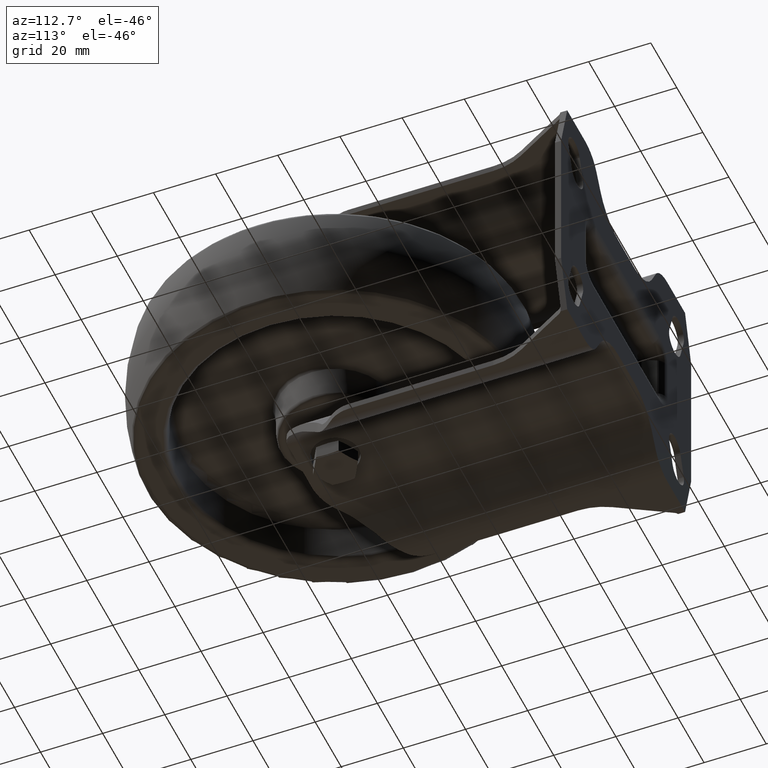
[diagram: clean part render]
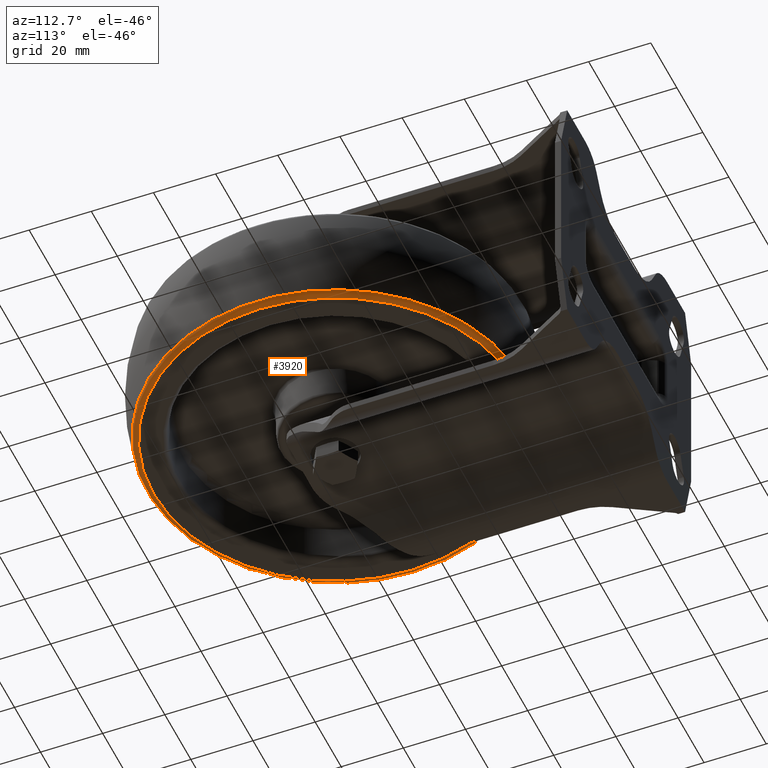
[diagram: same view with one face highlighted and labeled with its STEP entity id]
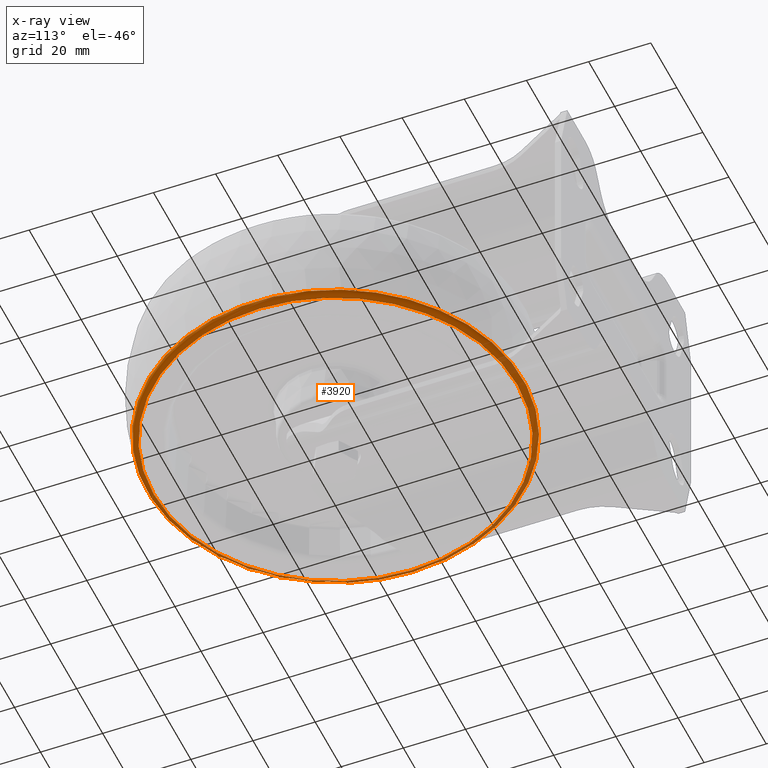
[diagram: x-ray of the same camera — body ghosted, the highlighted face saturated]
A machine part, auxiliary view. The second image highlights one B-rep face of the part: STEP entity #3920.
The next image is the same camera in x-ray: the body ghosted, the highlighted face saturated — about 8% of this face is hidden behind the body in this view.
In plain terms, the highlighted toroidal blend (fillet) surface has major radius 58.4808 mm and minor (blend) radius 2 mm.
Its self-contained STEP definition (entity closure, byte-faithful):
#31=TOROIDAL_SURFACE('',#4385,58.4807660688538,2.);
#1086=FACE_OUTER_BOUND('',#1331,.T.);
#1331=EDGE_LOOP('',(#3658,#3659,#3660,#3661));
#1498=CIRCLE('',#4358,58.4807660688538);
#1515=CIRCLE('',#4384,60.4140145339399);
#1516=CIRCLE('',#4386,2.);
#1919=VERTEX_POINT('',#7075);
#1930=VERTEX_POINT('',#7114);
#2486=EDGE_CURVE('',#1919,#1919,#1498,.T.);
#2506=EDGE_CURVE('',#1930,#1930,#1515,.T.);
#2507=EDGE_CURVE('',#1930,#1919,#1516,.T.);
#3658=ORIENTED_EDGE('',*,*,#2506,.F.);
#3659=ORIENTED_EDGE('',*,*,#2507,.T.);
#3660=ORIENTED_EDGE('',*,*,#2486,.T.);
#3661=ORIENTED_EDGE('',*,*,#2507,.F.);
#3920=ADVANCED_FACE('',(#1086),#31,.T.);
#4358=AXIS2_PLACEMENT_3D('',#7076,#5478,#5479);
#4384=AXIS2_PLACEMENT_3D('',#7116,#5533,#5534);
#4385=AXIS2_PLACEMENT_3D('',#7117,#5535,#5536);
#4386=AXIS2_PLACEMENT_3D('',#7118,#5537,#5538);
#5478=DIRECTION('center_axis',(0.,0.,1.));
#5479=DIRECTION('ref_axis',(1.,0.,0.));
#5533=DIRECTION('center_axis',(0.,0.,1.));
#5534=DIRECTION('ref_axis',(1.,0.,0.));
#5535=DIRECTION('center_axis',(0.,0.,1.));
#5536=DIRECTION('ref_axis',(1.,0.,0.));
#5537=DIRECTION('center_axis',(1.22464679914735E-16,-1.,0.));
#5538=DIRECTION('ref_axis',(-1.,-1.22464679914735E-16,0.));
#7075=CARTESIAN_POINT('',(-58.4807660688538,-7.16182829779069E-15,-17.5));
#7076=CARTESIAN_POINT('Origin',(0.,0.,-17.5));
#7114=CARTESIAN_POINT('',(-60.4140145339399,-7.39858295226316E-15,-16.0123966942149));
#7116=CARTESIAN_POINT('Origin',(0.,0.,-16.0123966942149));
#7117=CARTESIAN_POINT('Origin',(0.,0.,-15.5));
#7118=CARTESIAN_POINT('Origin',(-58.4807660688538,-7.16182829779069E-15,
-15.5));